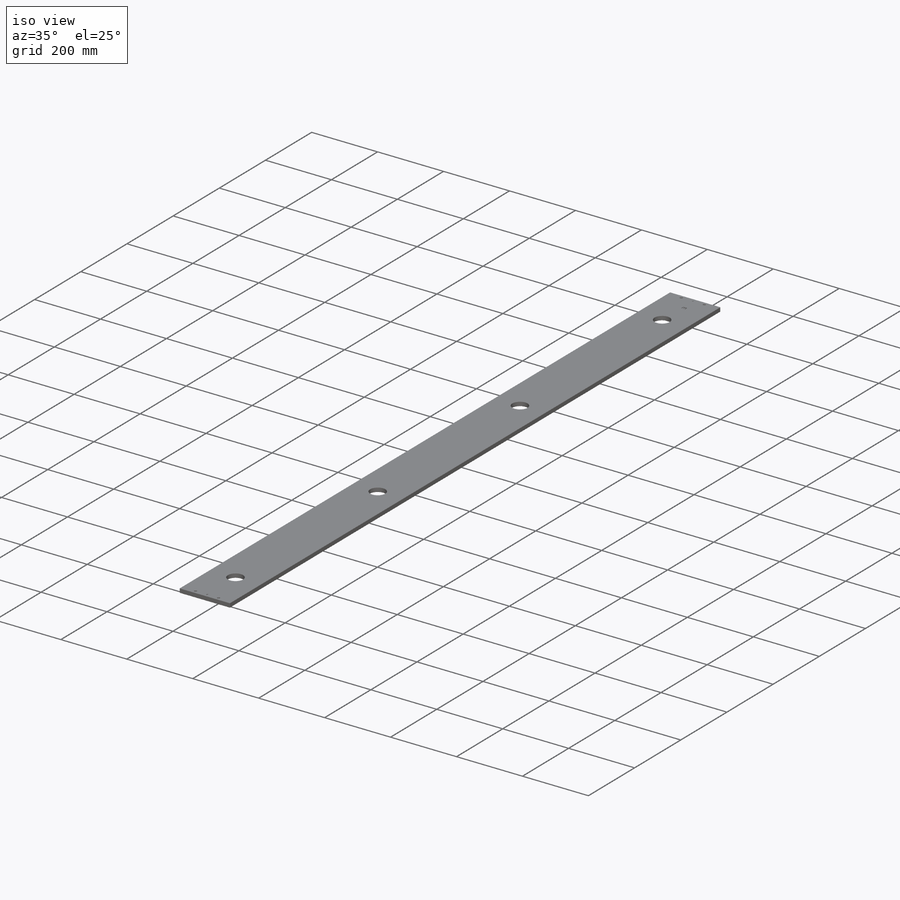
[diagram: iso view]
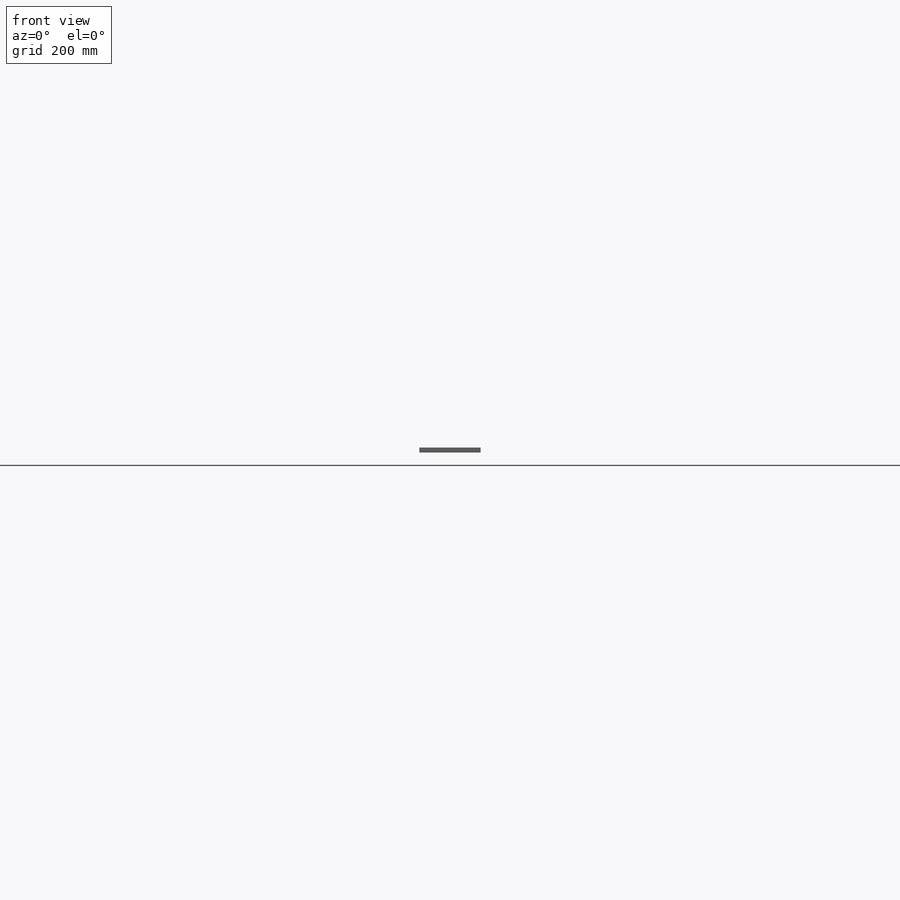
[diagram: front view]
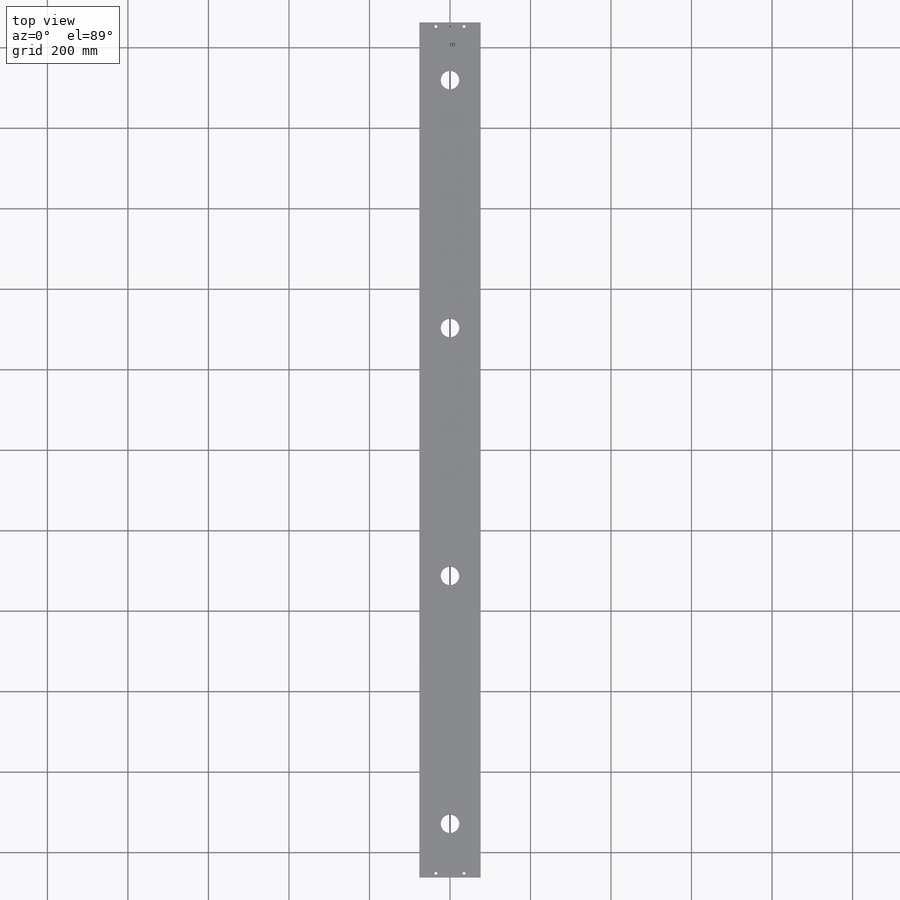
[diagram: top view]
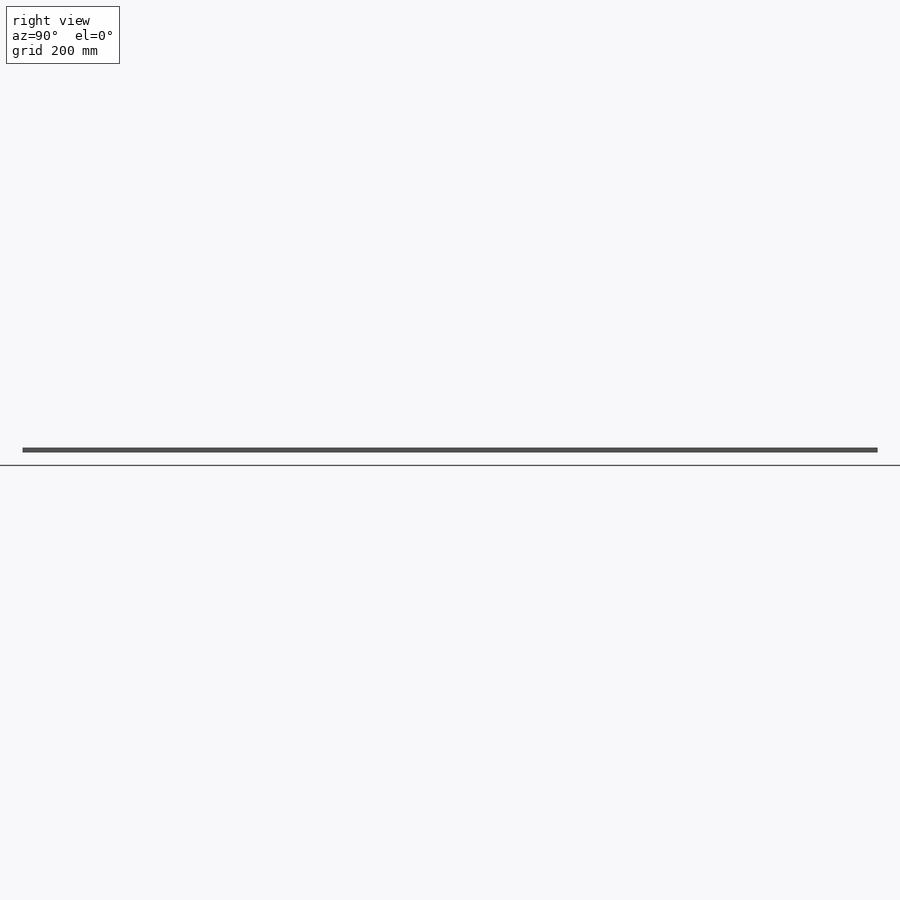
[diagram: right view]
SOLIDWORKS PART (.sldprt)
format: sldprt  version: not decoded by parser v0  size: 390,144 bytes
history: native  units: mm
features: sketch x9, chamfer x3, cut_extrude x3, hole x2, material x1, mirror x1, pattern_linear x1 (+11 scaffold rows collapsed)
feature tree (31):
  scaffold x11  (default folders/planes/origin — collapsed)
  material  "6061 Alloy"
  sketch  "Sketch1"  dims[c1.D1=152.4mm c2.D1=2124.0mm c2.D5=12.7mm c2.D6=1.0mm c2.D7=5.0mm]
  chamfer  "Chamfer1"  Distance=0.5mm Angle=45deg
  sketch  "Sketch2"  dims[D1=70.0mm D2=10.0mm]
  hole  "CBORE for 1/4 Socket Head Cap Screw1"  Diameter=7.14248mm Depth=12.7mm
  sketch  "3DSketch1"
  sketch  "Sketch3"  dims[hole-wizard template sketch: 45 standard entries collapsed; hole parameters kept: c12.Far C'Sink Dia.=~8.41248mm c12.D6=~2.963249mm c12.Far C'Sink Angle=90.0deg]
  hole  "1/8 (0.125) Diameter Hole1"  Diameter=3.2004mm Depth=12.7mm
  sketch  "3DSketch2"
  sketch  "Sketch4"  dims[hole-wizard template sketch: 46 standard entries collapsed; hole parameters kept: c15.Thru Hole Dia.=3.2004mm c15.Thru Hole Depth=12.7mm c15.Near C'Sink Dia.=4.445mm c15.D4=~3.666174mm c15.Near C'Sink Angle=90.0deg c15.Far C'Sink Dia.=4.445mm c15.D6=~9.919017mm c15.Far C'Sink Angle=90.0deg]
  mirror  "Mirror1"
  sketch  "Sketch5"  dims[D2=1.6002mm D1=3.0mm]
  cut_extrude  "Extrude1"  [1 undecoded]
  sketch  "Sketch6"  dims[D2=46.0mm D1=143.0mm]
  cut_extrude  "guide diameter"  [1 undecoded]
  chamfer  "Chamfer2"  Distance=0.5mm Angle=45deg
  pattern_linear  "LPattern1"  Count1=4 Count2=1 Spacing1=616mm Spacing2=10mm
  chamfer  "Chamfer3"  Distance=0.5mm Angle=45deg
  sketch  "Sketch7"  dims[D1=50.0mm]
  cut_extrude  "Cut-Extrude1"  Depth=2mm
decode coverage: 14 of 19 modeling features carry decoded parameters
note: ~ marks probable driven/reference dimensions
note: 2 parameter values undecoded
note: suppression state not decoded; provenance and decode notes live in map.json
